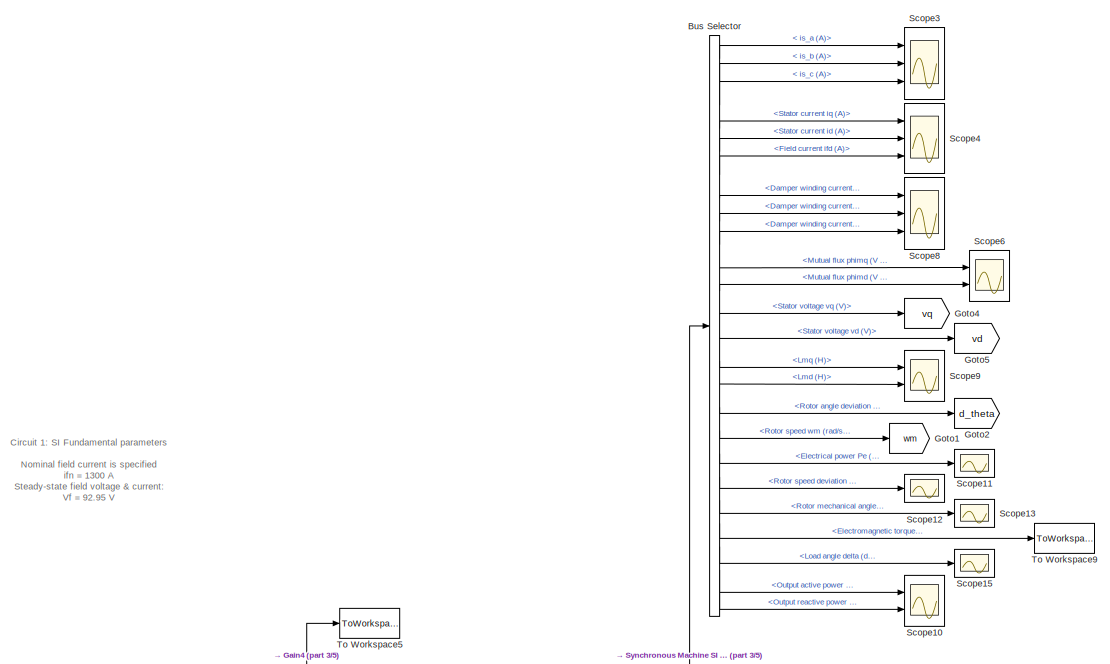
[diagram: root canvas - part 1/5, top left region]
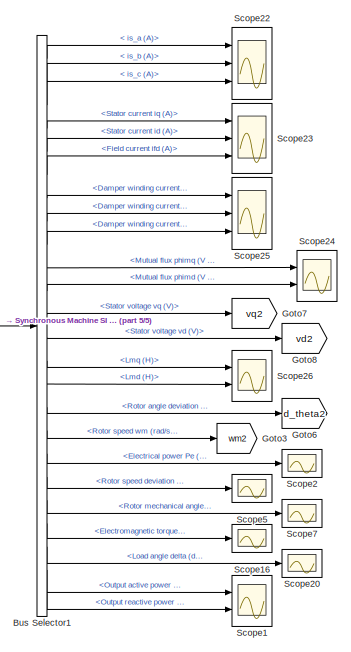
[diagram: root canvas - part 2/5, top right region]
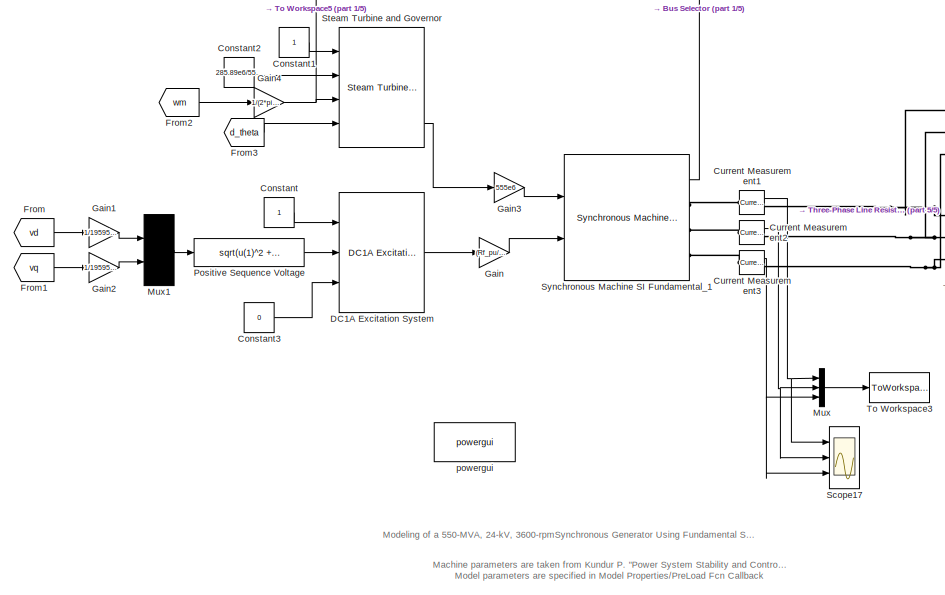
[diagram: root canvas - part 3/5, bottom left region]
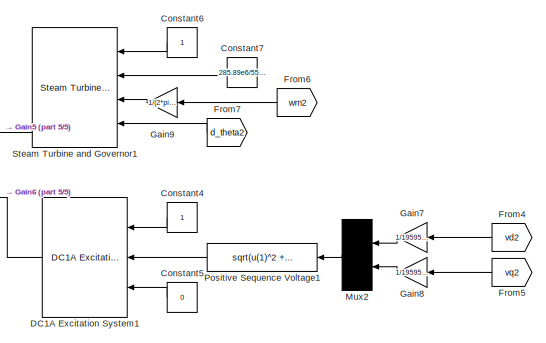
[diagram: root canvas - part 4/5, middle right region]
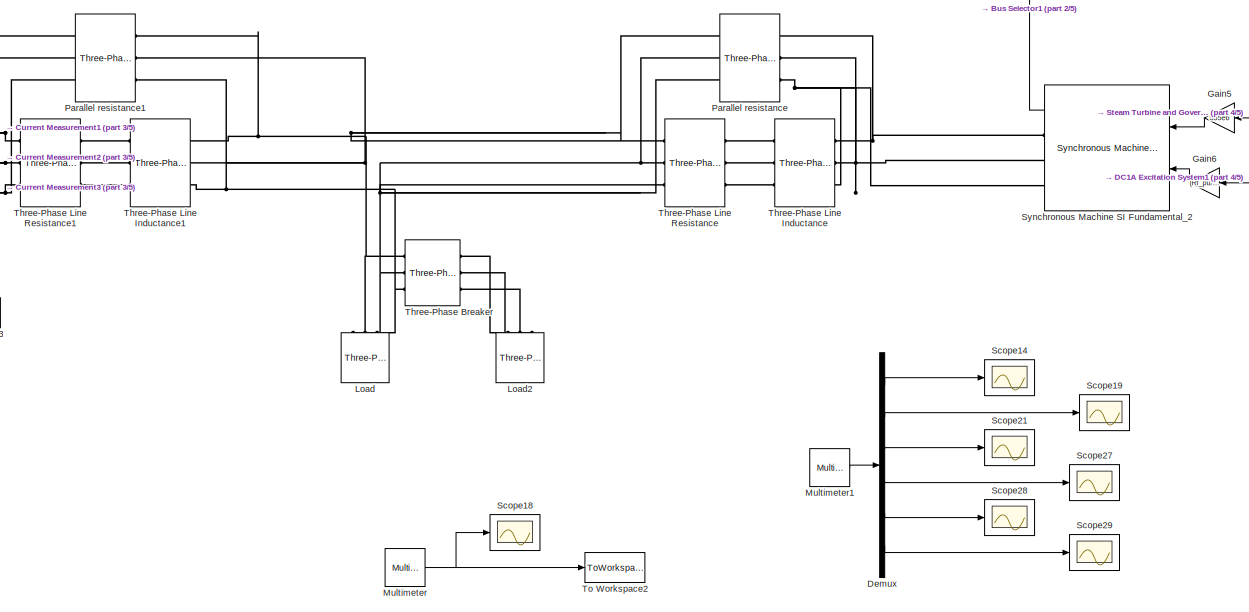
[diagram: root canvas - part 5/5, bottom center region]
MODEL slx_b8e702c381f7
KIND model
CONFIG AbsTol = auto
CONFIG EnableMultiTasking = on
CONFIG FixedStep = 0.00005
CONFIG MaxStep = 200e-6
CONFIG MinStep = auto
CONFIG PreLoadFcn = % Machine parameters from Kundur Examples 3.1, 3.2,  8.1 (pages 91,102, 345)\n% "Power System Stability and Control"  McGraw-Hill  book, 1994\n% --------------------------------------------------------------------\n% Nominal parameters\nPn=  555e6;   % three-pahse nominal power (VA)\nVn=  24e3;    % nominal LL volatge (Vrms)\nfn=  60;      % nominal frequency (Hz)\nifn= 1300;    % nominal field current (...<+1654ch>
CONFIG RelTol = 1e-4
CONFIG SampleTimeConstraint = Unconstrained
CONFIG Solver = FixedStepAuto
CONFIG SolverName = FixedStepAuto
CONFIG StartTime = 0.0
CONFIG StopTime = 0.3
BLOCK [BusSelector] Bus Selector
  OutputSignals = Stator current. is_a (A),Stator current. is_b (A),Stator current. is_c (A),dq0 components.Stator current  iq (A),dq0 components.Stator current  id (A),dq0 components.Field current  ifd (A),dq0 components.Damper winding current  ikq1 (A),dq0 components.Damper winding current  ikq2 (A),dq0 components.Damper winding current  ikd (A),dq0 components.Mutual flux  phimq (V s),dq0 components.Mutual flux  ...<+472ch>
  Ports = [1, 24]
BLOCK [BusSelector] Bus Selector1
  OutputSignals = Stator current. is_a (A),Stator current. is_b (A),Stator current. is_c (A),dq0 components.Stator current  iq (A),dq0 components.Stator current  id (A),dq0 components.Field current  ifd (A),dq0 components.Damper winding current  ikq1 (A),dq0 components.Damper winding current  ikq2 (A),dq0 components.Damper winding current  ikd (A),dq0 components.Mutual flux  phimq (V s),dq0 components.Mutual flux  ...<+472ch>
  Ports = [1, 24]
BLOCK [Constant] Constant
BLOCK [Constant] Constant1
BLOCK [Constant] Constant2
  Value = 285.89e6/555e6
BLOCK [Constant] Constant3
  Value = 0
BLOCK [Constant] Constant4
BLOCK [Constant] Constant5
  Value = 0
BLOCK [Constant] Constant6
BLOCK [Constant] Constant7
  Value = 285.89e6/555e6
BLOCK [Reference] Current Measurement1  REF=powerlib/Measurements/Current Measurement
  Ports = [0, 1, 0, 0, 0, 1, 1]
  SourceBlock = powerlib/Measurements/Current Measurement
  SourceType = Current Measurement
  UserDataPersistent = on
BLOCK [Reference] Current Measurement2  REF=powerlib/Measurements/Current Measurement
  Ports = [0, 1, 0, 0, 0, 1, 1]
  SourceBlock = powerlib/Measurements/Current Measurement
  SourceType = Current Measurement
  UserDataPersistent = on
BLOCK [Reference] Current Measurement3  REF=powerlib/Measurements/Current Measurement
  Ports = [0, 1, 0, 0, 0, 1, 1]
  SourceBlock = powerlib/Measurements/Current Measurement
  SourceType = Current Measurement
  UserDataPersistent = on
BLOCK [Reference] DC1A Excitation System  REF=sps_avr/DC1A
Excitation System
  Ports = [3, 1]
  SourceBlock = sps_avr/DC1A\nExcitation System
  SourceType = DC1A Excitation System
BLOCK [Reference] DC1A Excitation System1  REF=sps_avr/DC1A
Excitation System
  Ports = [3, 1]
  SourceBlock = sps_avr/DC1A\nExcitation System
  SourceType = DC1A Excitation System
BLOCK [Demux] Demux
  DisplayOption = bar
  Outputs = 6
  Ports = [1, 6]
BLOCK [From] From
  GotoTag = vd
BLOCK [From] From1
  GotoTag = vq
BLOCK [From] From2
  GotoTag = wm
BLOCK [From] From3
  GotoTag = d_theta
BLOCK [From] From4
  GotoTag = vd2
BLOCK [From] From5
  GotoTag = vq2
BLOCK [From] From6
  GotoTag = wm2
BLOCK [From] From7
  GotoTag = d_theta2
BLOCK [Gain] Gain
  Gain = (Rf_pu/Lmd_pu)*257198.07031934269
  OutDataTypeStr = Inherit: Inherit via internal rule
  ParamDataTypeStr = Inherit: Inherit via internal rule
  SaturateOnIntegerOverflow = off
BLOCK [Gain] Gain1
  Gain = 1/19595.917942265427
  OutDataTypeStr = Inherit: Inherit via internal rule
  ParamDataTypeStr = Inherit: Inherit via internal rule
  SaturateOnIntegerOverflow = off
BLOCK [Gain] Gain2
  Gain = 1/19595.917942265427
  OutDataTypeStr = Inherit: Inherit via internal rule
  ParamDataTypeStr = Inherit: Inherit via internal rule
  SaturateOnIntegerOverflow = off
BLOCK [Gain] Gain3
  Gain = 555e6
  OutDataTypeStr = Inherit: Inherit via internal rule
  ParamDataTypeStr = Inherit: Inherit via internal rule
  SaturateOnIntegerOverflow = off
BLOCK [Gain] Gain4
  Gain = 1/(2*pi*60)
  OutDataTypeStr = Inherit: Inherit via internal rule
  ParamDataTypeStr = Inherit: Inherit via internal rule
  SaturateOnIntegerOverflow = off
BLOCK [Gain] Gain5
  Gain = 555e6
  OutDataTypeStr = Inherit: Inherit via internal rule
  ParamDataTypeStr = Inherit: Inherit via internal rule
  SaturateOnIntegerOverflow = off
BLOCK [Gain] Gain6
  Gain = (Rf_pu/Lmd_pu)*257198.07031934269
  OutDataTypeStr = Inherit: Inherit via internal rule
  ParamDataTypeStr = Inherit: Inherit via internal rule
  SaturateOnIntegerOverflow = off
BLOCK [Gain] Gain7
  Gain = 1/19595.917942265427
  OutDataTypeStr = Inherit: Inherit via internal rule
  ParamDataTypeStr = Inherit: Inherit via internal rule
  SaturateOnIntegerOverflow = off
BLOCK [Gain] Gain8
  Gain = 1/19595.917942265427
  OutDataTypeStr = Inherit: Inherit via internal rule
  ParamDataTypeStr = Inherit: Inherit via internal rule
  SaturateOnIntegerOverflow = off
BLOCK [Gain] Gain9
  Gain = 1/(2*pi*60)
  OutDataTypeStr = Inherit: Inherit via internal rule
  ParamDataTypeStr = Inherit: Inherit via internal rule
  SaturateOnIntegerOverflow = off
BLOCK [Goto] Goto1
  GotoTag = wm
BLOCK [Goto] Goto2
  GotoTag = d_theta
BLOCK [Goto] Goto3
  GotoTag = wm2
BLOCK [Goto] Goto4
  GotoTag = vq
BLOCK [Goto] Goto5
  GotoTag = vd
BLOCK [Goto] Goto6
  GotoTag = d_theta2
BLOCK [Goto] Goto7
  GotoTag = vq2
BLOCK [Goto] Goto8
  GotoTag = vd2
BLOCK [Reference] Load  REF=powerlib/Elements/Three-Phase
Series RLC Load
  AttributesFormatString = \n
  Ports = [0, 0, 0, 0, 0, 3]
  SourceBlock = powerlib/Elements/Three-Phase\nSeries RLC Load
  SourceType = Three-Phase Series RLC Load
BLOCK [Reference] Load2  REF=powerlib/Elements/Three-Phase
Series RLC Load
  AttributesFormatString = \n
  Ports = [0, 0, 0, 0, 0, 3]
  SourceBlock = powerlib/Elements/Three-Phase\nSeries RLC Load
  SourceType = Three-Phase Series RLC Load
BLOCK [Reference] Multimeter  REF=powerlib/Measurements/Multimeter
  Ports = [0, 1]
  SourceBlock = powerlib/Measurements/Multimeter
  SourceType = MultimeterPSB
BLOCK [Reference] Multimeter1  REF=powerlib/Measurements/Multimeter
  Ports = [0, 1]
  SourceBlock = powerlib/Measurements/Multimeter
  SourceType = MultimeterPSB
BLOCK [Mux] Mux
  DisplayOption = bar
  Inputs = 3
  Ports = [3, 1]
BLOCK [Mux] Mux1
  Inputs = 2
  Ports = [2, 1]
BLOCK [Mux] Mux2
  Inputs = 2
  Ports = [2, 1]
BLOCK [Reference] Parallel resistance  REF=powerlib/Elements/Three-Phase
Series RLC Branch
  AttributesFormatString = \n
  Ports = [0, 0, 0, 0, 0, 3, 3]
  SourceBlock = powerlib/Elements/Three-Phase\nSeries RLC Branch
  SourceType = Three-Phase Series RLC Branch
BLOCK [Reference] Parallel resistance1  REF=powerlib/Elements/Three-Phase
Series RLC Branch
  AttributesFormatString = \n
  Ports = [0, 0, 0, 0, 0, 3, 3]
  SourceBlock = powerlib/Elements/Three-Phase\nSeries RLC Branch
  SourceType = Three-Phase Series RLC Branch
BLOCK [Fcn] Positive Sequence Voltage
  Expr = sqrt(u(1)^2 + u(2)^2)
BLOCK [Fcn] Positive Sequence Voltage1
  Expr = sqrt(u(1)^2 + u(2)^2)
BLOCK [Scope] Scope1
  NumInputPorts = 2
  Ports = [2]
  ScopeSpecificationString = C++SS(StrPVP('SaveName','ScopeData1'),StrPVP('LimitDataPoints','on'),StrPVP('DataFormat','Array'),StrPVP('Decimation','1'),StrPVP('BlockParamSampleInput','off'))
BLOCK [Scope] Scope10
  NumInputPorts = 2
  Ports = [2]
  ScopeSpecificationString = Simulink.scopes.TimeScopeBlockCfg('CurrentConfiguration', extmgr.ConfigurationSet(extmgr.Configuration('Core','General UI',true),extmgr.Configuration('Core','Source UI',true),extmgr.Configuration('Sources','WiredSimulink',true,'DataLoggingVariableName','ScopeData8'),extmgr.Configuration('Visuals','Time Domain',true,'SerializedDisplays',{struct('MinYLimReal','-938864446.74953','MaxYLimReal','845534...<+2126ch>
BLOCK [Scope] Scope11
  NumInputPorts = 1
  Ports = [1]
  ScopeSpecificationString = Simulink.scopes.TimeScopeBlockCfg('CurrentConfiguration', extmgr.ConfigurationSet(extmgr.Configuration('Core','General UI',true),extmgr.Configuration('Core','Source UI',true),extmgr.Configuration('Sources','WiredSimulink',true,'DataLoggingVariableName','ScopeData9'),extmgr.Configuration('Visuals','Time Domain',true,'SerializedDisplays',{struct('MinYLimReal','554795.30383','MaxYLimReal','555665.063...<+2070ch>
BLOCK [Scope] Scope12
  NumInputPorts = 1
  Ports = [1]
  ScopeSpecificationString = Simulink.scopes.TimeScopeBlockCfg('CurrentConfiguration', extmgr.ConfigurationSet(extmgr.Configuration('Core','General UI',true),extmgr.Configuration('Core','Source UI',true),extmgr.Configuration('Sources','WiredSimulink',true,'DataLoggingVariableName','ScopeData10'),extmgr.Configuration('Visuals','Time Domain',true,'SerializedDisplays',{struct('MinYLimReal','-0.000000002','MaxYLimReal','0.0000000...<+2074ch>
BLOCK [Scope] Scope13
  NumInputPorts = 1
  Ports = [1]
  ScopeSpecificationString = Simulink.scopes.TimeScopeBlockCfg('CurrentConfiguration', extmgr.ConfigurationSet(extmgr.Configuration('Core','General UI',true),extmgr.Configuration('Core','Source UI',true),extmgr.Configuration('Sources','WiredSimulink',true,'DataLoggingVariableName','ScopeData11'),extmgr.Configuration('Visuals','Time Domain',true,'SerializedDisplays',{struct('MinYLimReal','-113.91898','MaxYLimReal','-47.70201',...<+2113ch>
BLOCK [Scope] Scope14
  NumInputPorts = 1
  Ports = [1]
  ScopeSpecificationString = Simulink.scopes.TimeScopeBlockCfg('CurrentConfiguration', extmgr.ConfigurationSet(extmgr.Configuration('Core','General UI',true),extmgr.Configuration('Core','Source UI',true),extmgr.Configuration('Sources','WiredSimulink',true,'DataLoggingVariableName','ScopeData1'),extmgr.Configuration('Visuals','Time Domain',true,'SerializedDisplays',{struct('MinYLimReal','-4324.46237','MaxYLimReal','4316.55226'...<+1774ch>
BLOCK [Scope] Scope15
  NumInputPorts = 1
  Ports = [1]
  ScopeSpecificationString = Simulink.scopes.TimeScopeBlockCfg('CurrentConfiguration', extmgr.ConfigurationSet(extmgr.Configuration('Core','General UI',true),extmgr.Configuration('Core','Source UI',true),extmgr.Configuration('Sources','WiredSimulink',true,'DataLoggingVariableName','ScopeData13'),extmgr.Configuration('Visuals','Time Domain',true,'SerializedDisplays',{struct('MinYLimReal','-190.61532','MaxYLimReal','214.69266',...<+2060ch>
BLOCK [Scope] Scope16
  NumInputPorts = 1
  Ports = [1]
  ScopeSpecificationString = C++SS(StrPVP('SaveName','ScopeData2'),StrPVP('LimitDataPoints','on'),StrPVP('DataFormat','Array'),StrPVP('Decimation','1'),StrPVP('BlockParamSampleInput','off'))
BLOCK [Scope] Scope17
  NumInputPorts = 3
  Ports = [3]
  ScopeSpecificationString = Simulink.scopes.TimeScopeBlockCfg('CurrentConfiguration', extmgr.ConfigurationSet(extmgr.Configuration('Core','General UI',true),extmgr.Configuration('Core','Source UI',true),extmgr.Configuration('Sources','WiredSimulink',true,'DataLoggingSaveFormat','StructureWithTime','DataLoggingDecimation','1','DataLoggingDecimateData',true,'DataLoggingVariableName','ScopeData2'),extmgr.Configuration('Visuals'...<+2002ch>
BLOCK [Scope] Scope18
  NumInputPorts = 1
  Ports = [1]
  ScopeSpecificationString = Simulink.scopes.TimeScopeBlockCfg('CurrentConfiguration', extmgr.ConfigurationSet(extmgr.Configuration('Core','General UI',true),extmgr.Configuration('Core','Source UI',true),extmgr.Configuration('Sources','WiredSimulink',true,'DataLoggingVariableName','ScopeData1'),extmgr.Configuration('Visuals','Time Domain',true,'SerializedDisplays',{struct('MinYLimReal','-24496.13978','MaxYLimReal','24496.1398...<+1853ch>
BLOCK [Scope] Scope19
  NumInputPorts = 1
  Ports = [1]
  ScopeSpecificationString = Simulink.scopes.TimeScopeBlockCfg('CurrentConfiguration', extmgr.ConfigurationSet(extmgr.Configuration('Core','General UI',true),extmgr.Configuration('Core','Source UI',true),extmgr.Configuration('Sources','WiredSimulink',true,'DataLoggingVariableName','ScopeData2'),extmgr.Configuration('Visuals','Time Domain',true,'SerializedDisplays',{struct('MinYLimReal','-4316.01246','MaxYLimReal','4314.87166'...<+1748ch>
BLOCK [Scope] Scope2
  NumInputPorts = 1
  Ports = [1]
  ScopeSpecificationString = C++SS(StrPVP('SaveName','ScopeData3'),StrPVP('LimitDataPoints','on'),StrPVP('DataFormat','Array'),StrPVP('Decimation','1'),StrPVP('BlockParamSampleInput','off'))
BLOCK [Scope] Scope20
  NumInputPorts = 1
  Ports = [1]
  ScopeSpecificationString = C++SS(StrPVP('SaveName','ScopeData4'),StrPVP('LimitDataPoints','on'),StrPVP('DataFormat','Array'),StrPVP('Decimation','1'),StrPVP('BlockParamSampleInput','off'))
BLOCK [Scope] Scope21
  NumInputPorts = 1
  Ports = [1]
  ScopeSpecificationString = Simulink.scopes.TimeScopeBlockCfg('CurrentConfiguration', extmgr.ConfigurationSet(extmgr.Configuration('Core','General UI',true),extmgr.Configuration('Core','Source UI',true),extmgr.Configuration('Sources','WiredSimulink',true,'DataLoggingVariableName','ScopeData3'),extmgr.Configuration('Visuals','Time Domain',true,'SerializedDisplays',{struct('MinYLimReal','-4315.43617','MaxYLimReal','4316.66942'...<+1749ch>
BLOCK [Scope] Scope22
  NumInputPorts = 3
  Ports = [3]
  ScopeSpecificationString = C++SS(StrPVP('SaveName','ScopeData5'),StrPVP('LimitDataPoints','on'),StrPVP('DataFormat','Array'),StrPVP('Decimation','1'),StrPVP('BlockParamSampleInput','off'))
BLOCK [Scope] Scope23
  NumInputPorts = 3
  Ports = [3]
  ScopeSpecificationString = C++SS(StrPVP('SaveName','ScopeData6'),StrPVP('LimitDataPoints','on'),StrPVP('DataFormat','Array'),StrPVP('Decimation','1'),StrPVP('BlockParamSampleInput','off'))
BLOCK [Scope] Scope24
  NumInputPorts = 2
  Ports = [2]
  ScopeSpecificationString = C++SS(StrPVP('SaveName','ScopeData7'),StrPVP('LimitDataPoints','on'),StrPVP('DataFormat','Array'),StrPVP('Decimation','1'),StrPVP('BlockParamSampleInput','off'))
BLOCK [Scope] Scope25
  NumInputPorts = 3
  Ports = [3]
  ScopeSpecificationString = C++SS(StrPVP('SaveName','ScopeData8'),StrPVP('LimitDataPoints','on'),StrPVP('DataFormat','Array'),StrPVP('Decimation','1'),StrPVP('BlockParamSampleInput','off'))
BLOCK [Scope] Scope26
  NumInputPorts = 2
  Ports = [2]
  ScopeSpecificationString = C++SS(StrPVP('SaveName','ScopeData9'),StrPVP('LimitDataPoints','on'),StrPVP('DataFormat','Array'),StrPVP('Decimation','1'),StrPVP('BlockParamSampleInput','off'))
BLOCK [Scope] Scope27
  NumInputPorts = 1
  Ports = [1]
  ScopeSpecificationString = Simulink.scopes.TimeScopeBlockCfg('CurrentConfiguration', extmgr.ConfigurationSet(extmgr.Configuration('Core','General UI',true),extmgr.Configuration('Core','Source UI',true),extmgr.Configuration('Sources','WiredSimulink',true,'DataLoggingVariableName','ScopeData4'),extmgr.Configuration('Visuals','Time Domain',true,'SerializedDisplays',{struct('MinYLimReal','-12332.328','MaxYLimReal','12329.39103'...<+1722ch>
BLOCK [Scope] Scope28
  NumInputPorts = 1
  Ports = [1]
  ScopeSpecificationString = Simulink.scopes.TimeScopeBlockCfg('CurrentConfiguration', extmgr.ConfigurationSet(extmgr.Configuration('Core','General UI',true),extmgr.Configuration('Core','Source UI',true),extmgr.Configuration('Sources','WiredSimulink',true,'DataLoggingVariableName','ScopeData5'),extmgr.Configuration('Visuals','Time Domain',true,'SerializedDisplays',{struct('MinYLimReal','-12331.02101','MaxYLimReal','12334.9618...<+1730ch>
BLOCK [Scope] Scope29
  NumInputPorts = 1
  Ports = [1]
  ScopeSpecificationString = Simulink.scopes.TimeScopeBlockCfg('CurrentConfiguration', extmgr.ConfigurationSet(extmgr.Configuration('Core','General UI',true),extmgr.Configuration('Core','Source UI',true),extmgr.Configuration('Sources','WiredSimulink',true,'DataLoggingVariableName','ScopeData6'),extmgr.Configuration('Visuals','Time Domain',true,'SerializedDisplays',{struct('MinYLimReal','-12328.35611','MaxYLimReal','12331.2889...<+1730ch>
BLOCK [Scope] Scope3
  NumInputPorts = 3
  Ports = [3]
  ScopeSpecificationString = Simulink.scopes.TimeScopeBlockCfg('CurrentConfiguration', extmgr.ConfigurationSet(extmgr.Configuration('Core','General UI',true),extmgr.Configuration('Core','Source UI',true),extmgr.Configuration('Sources','WiredSimulink',true,'DataLoggingVariableName','ScopeData1'),extmgr.Configuration('Visuals','Time Domain',true,'SerializedDisplays',{struct('MinYLimReal','16.30961','MaxYLimReal','16.37906','YLa...<+1475ch>
BLOCK [Scope] Scope4
  NumInputPorts = 3
  Ports = [3]
  ScopeSpecificationString = Simulink.scopes.TimeScopeBlockCfg('CurrentConfiguration', extmgr.ConfigurationSet(extmgr.Configuration('Core','General UI',true),extmgr.Configuration('Core','Source UI',true),extmgr.Configuration('Sources','WiredSimulink',true,'DataLoggingVariableName','ScopeData2'),extmgr.Configuration('Visuals','Time Domain',true,'SerializedDisplays',{struct('MinYLimReal','-104503.54243','MaxYLimReal','107336.88...<+2852ch>
BLOCK [Scope] Scope5
  NumInputPorts = 1
  Ports = [1]
  ScopeSpecificationString = C++SS(StrPVP('SaveName','ScopeData10'),StrPVP('LimitDataPoints','on'),StrPVP('DataFormat','Array'),StrPVP('Decimation','1'),StrPVP('BlockParamSampleInput','off'))
BLOCK [Scope] Scope6
  NumInputPorts = 2
  Ports = [2]
  ScopeSpecificationString = Simulink.scopes.TimeScopeBlockCfg('CurrentConfiguration', extmgr.ConfigurationSet(extmgr.Configuration('Core','General UI',true),extmgr.Configuration('Core','Source UI',true),extmgr.Configuration('Sources','WiredSimulink',true,'DataLoggingVariableName','ScopeData4'),extmgr.Configuration('Visuals','Time Domain',true,'SerializedDisplays',{struct('MinYLimReal','-32.79254','MaxYLimReal','25.98415','YL...<+2085ch>
BLOCK [Scope] Scope7
  NumInputPorts = 1
  Ports = [1]
  ScopeSpecificationString = C++SS(StrPVP('SaveName','ScopeData11'),StrPVP('LimitDataPoints','on'),StrPVP('DataFormat','Array'),StrPVP('Decimation','1'),StrPVP('BlockParamSampleInput','off'))
BLOCK [Scope] Scope8
  NumInputPorts = 3
  Ports = [3]
  ScopeSpecificationString = Simulink.scopes.TimeScopeBlockCfg('CurrentConfiguration', extmgr.ConfigurationSet(extmgr.Configuration('Core','General UI',true),extmgr.Configuration('Core','Source UI',true),extmgr.Configuration('Sources','WiredSimulink',true,'DataLoggingVariableName','ScopeData6'),extmgr.Configuration('Visuals','Time Domain',true,'SerializedDisplays',{struct('MinYLimReal','-13184.59574','MaxYLimReal','16286.8917...<+2861ch>
BLOCK [Scope] Scope9
  NumInputPorts = 2
  Ports = [2]
  ScopeSpecificationString = Simulink.scopes.TimeScopeBlockCfg('CurrentConfiguration', extmgr.ConfigurationSet(extmgr.Configuration('Core','General UI',true),extmgr.Configuration('Core','Source UI',true),extmgr.Configuration('Sources','WiredSimulink',true,'DataLoggingVariableName','ScopeData7'),extmgr.Configuration('Visuals','Time Domain',true,'SerializedDisplays',{struct('MinYLimReal','0.00343','MaxYLimReal','0.00543','YLabe...<+2043ch>
BLOCK [Reference] Steam Turbine and Governor  REF=powerlib/Machines/Steam Turbine
and Governor
  Ports = [4, 4]
  SourceBlock = powerlib/Machines/Steam Turbine\nand Governor
  SourceType = Steam Turbine and Governor
BLOCK [Reference] Steam Turbine and Governor1  REF=powerlib/Machines/Steam Turbine
and Governor
  Ports = [4, 4]
  SourceBlock = powerlib/Machines/Steam Turbine\nand Governor
  SourceType = Steam Turbine and Governor
BLOCK [Reference] Synchronous Machine SI Fundamental_1  REF=powerlib/Machines/Synchronous Machine
SI Fundamental
  Ports = [2, 1, 0, 0, 0, 0, 3]
  SourceBlock = powerlib/Machines/Synchronous Machine\nSI Fundamental
  SourceType = Synchronous Machine
BLOCK [Reference] Synchronous Machine SI Fundamental_2  REF=powerlib/Machines/Synchronous Machine
SI Fundamental
  Ports = [2, 1, 0, 0, 0, 0, 3]
  SourceBlock = powerlib/Machines/Synchronous Machine\nSI Fundamental
  SourceType = Synchronous Machine
BLOCK [Reference] Three-Phase Breaker  REF=powerlib/Elements/Three-Phase Breaker
  Ports = [0, 0, 0, 0, 0, 3, 3]
  SourceBlock = powerlib/Elements/Three-Phase Breaker
  SourceType = Three-Phase Breaker
BLOCK [Reference] Three-Phase Line Inductance  REF=powerlib/Elements/Three-Phase
Series RLC Branch
  AttributesFormatString = \n
  Ports = [0, 0, 0, 0, 0, 3, 3]
  SourceBlock = powerlib/Elements/Three-Phase\nSeries RLC Branch
  SourceType = Three-Phase Series RLC Branch
BLOCK [Reference] Three-Phase Line Inductance1  REF=powerlib/Elements/Three-Phase
Series RLC Branch
  AttributesFormatString = \n
  Ports = [0, 0, 0, 0, 0, 3, 3]
  SourceBlock = powerlib/Elements/Three-Phase\nSeries RLC Branch
  SourceType = Three-Phase Series RLC Branch
BLOCK [Reference] Three-Phase Line Resistance  REF=powerlib/Elements/Three-Phase
Series RLC Branch
  AttributesFormatString = \n
  Ports = [0, 0, 0, 0, 0, 3, 3]
  SourceBlock = powerlib/Elements/Three-Phase\nSeries RLC Branch
  SourceType = Three-Phase Series RLC Branch
BLOCK [Reference] Three-Phase Line Resistance1  REF=powerlib/Elements/Three-Phase
Series RLC Branch
  AttributesFormatString = \n
  Ports = [0, 0, 0, 0, 0, 3, 3]
  SourceBlock = powerlib/Elements/Three-Phase\nSeries RLC Branch
  SourceType = Three-Phase Series RLC Branch
BLOCK [ToWorkspace] To Workspace2
  FixptAsFi = on
  MaxDataPoints = inf
  Ports = [1]
  SampleTime = -1
  Save2DSignal = 3-D array (concatenate along third dimension)
  VariableName = voltages
BLOCK [ToWorkspace] To Workspace3
  FixptAsFi = on
  MaxDataPoints = inf
  Ports = [1]
  SampleTime = -1
  Save2DSignal = 3-D array (concatenate along third dimension)
  VariableName = currents
BLOCK [ToWorkspace] To Workspace5
  MaxDataPoints = inf
  Ports = [1]
  SampleTime = -1
  Save2DSignal = 3-D array (concatenate along third dimension)
  VariableName = omega_pu
BLOCK [ToWorkspace] To Workspace9
  MaxDataPoints = inf
  Ports = [1]
  SampleTime = -1
  Save2DSignal = 3-D array (concatenate along third dimension)
  VariableName = Te
BLOCK [Reference] powergui  REF=powerlib/powergui
  Ports = []
  Priority = 1
  SourceBlock = powerlib/powergui
  SourceType = PSB option menu block
ANNOTATION (root): Circuit 1: SI Fundamental parameters Nominal field current is specified ifn = 1300 A Steady-state field voltage & current: Vf = 92.95 V If = 1300 A Transformation ratio : Ns/Nf = 0.07619
ANNOTATION (root): Machine parameters are taken from Kundur P. "Power System Stability and Control" McGraw-Hill book, 1994 Examples 3.1, 3.2 & 8.1 Model parameters are specified in Model Properties/PreLoad Fcn Callback
ANNOTATION (root): Modeling of a 550-MVA, 24-kV, 3600-rpmSynchronous Generator Using Fundamental SI & PU Parameters
LINE Bus Selector1:1 -> Scope22:1
LINE Bus Selector1:10 -> Scope24:1
LINE Bus Selector1:11 -> Scope24:2
LINE Bus Selector1:12 -> Goto7:1
LINE Bus Selector1:13 -> Goto8:1
LINE Bus Selector1:14 -> Scope26:1
LINE Bus Selector1:15 -> Scope26:2
LINE Bus Selector1:16 -> Goto6:1
LINE Bus Selector1:17 -> Goto3:1
LINE Bus Selector1:18 -> Scope2:1
LINE Bus Selector1:19 -> Scope5:1
LINE Bus Selector1:2 -> Scope22:2
LINE Bus Selector1:20 -> Scope7:1
LINE Bus Selector1:21 -> Scope16:1
LINE Bus Selector1:22 -> Scope20:1
LINE Bus Selector1:23 -> Scope1:1
LINE Bus Selector1:24 -> Scope1:2
LINE Bus Selector1:3 -> Scope22:3
LINE Bus Selector1:4 -> Scope23:1
LINE Bus Selector1:5 -> Scope23:2
LINE Bus Selector1:6 -> Scope23:3
LINE Bus Selector1:7 -> Scope25:1
LINE Bus Selector1:8 -> Scope25:2
LINE Bus Selector1:9 -> Scope25:3
LINE Bus Selector:1 -> Scope3:1
LINE Bus Selector:10 -> Scope6:1
LINE Bus Selector:11 -> Scope6:2
LINE Bus Selector:12 -> Goto4:1
LINE Bus Selector:13 -> Goto5:1
LINE Bus Selector:14 -> Scope9:1
LINE Bus Selector:15 -> Scope9:2
LINE Bus Selector:16 -> Goto2:1
LINE Bus Selector:17 -> Goto1:1
LINE Bus Selector:18 -> Scope11:1
LINE Bus Selector:19 -> Scope12:1
LINE Bus Selector:2 -> Scope3:2
LINE Bus Selector:20 -> Scope13:1
LINE Bus Selector:21 -> To Workspace9:1
LINE Bus Selector:22 -> Scope15:1
LINE Bus Selector:23 -> Scope10:1
LINE Bus Selector:24 -> Scope10:2
LINE Bus Selector:3 -> Scope3:3
LINE Bus Selector:4 -> Scope4:1
LINE Bus Selector:5 -> Scope4:2
LINE Bus Selector:6 -> Scope4:3
LINE Bus Selector:7 -> Scope8:1
LINE Bus Selector:8 -> Scope8:2
LINE Bus Selector:9 -> Scope8:3
LINE Constant1:1 -> Steam Turbine and Governor:1
LINE Constant2:1 -> Steam Turbine and Governor:2
LINE Constant3:1 -> DC1A Excitation System:3
LINE Constant4:1 -> DC1A Excitation System1:1
LINE Constant5:1 -> DC1A Excitation System1:3
LINE Constant6:1 -> Steam Turbine and Governor1:1
LINE Constant7:1 -> Steam Turbine and Governor1:2
LINE Constant:1 -> DC1A Excitation System:1
NET Current Measurement1:1 -> Mux:1, Scope17:1
NET Current Measurement2:1 -> Mux:2, Scope17:2
NET Current Measurement3:1 -> Mux:3, Scope17:3
LINE DC1A Excitation System1:1 -> Gain6:1
LINE DC1A Excitation System:1 -> Gain:1
LINE Demux:1 -> Scope14:1
LINE Demux:2 -> Scope19:1
LINE Demux:3 -> Scope21:1
LINE Demux:4 -> Scope27:1
LINE Demux:5 -> Scope28:1
LINE Demux:6 -> Scope29:1
LINE From1:1 -> Gain2:1
LINE From2:1 -> Gain4:1
LINE From3:1 -> Steam Turbine and Governor:4
LINE From4:1 -> Gain7:1
LINE From5:1 -> Gain8:1
LINE From6:1 -> Gain9:1
LINE From7:1 -> Steam Turbine and Governor1:4
LINE From:1 -> Gain1:1
LINE Gain1:1 -> Mux1:1
LINE Gain2:1 -> Mux1:2
LINE Gain3:1 -> Synchronous Machine SI Fundamental_1:1
NET Gain4:1 -> Steam Turbine and Governor:3, To Workspace5:1
LINE Gain5:1 -> Synchronous Machine SI Fundamental_2:1
LINE Gain6:1 -> Synchronous Machine SI Fundamental_2:2
LINE Gain7:1 -> Mux2:1
LINE Gain8:1 -> Mux2:2
LINE Gain9:1 -> Steam Turbine and Governor1:3
LINE Gain:1 -> Synchronous Machine SI Fundamental_1:2
LINE Multimeter1:1 -> Demux:1
NET Multimeter:1 -> Scope18:1, To Workspace2:1
LINE Mux1:1 -> Positive Sequence Voltage:1
LINE Mux2:1 -> Positive Sequence Voltage1:1
LINE Mux:1 -> To Workspace3:1
LINE Positive Sequence Voltage1:1 -> DC1A Excitation System1:2
LINE Positive Sequence Voltage:1 -> DC1A Excitation System:2
LINE Steam Turbine and Governor1:4 -> Gain5:1
LINE Steam Turbine and Governor:4 -> Gain3:1
LINE Synchronous Machine SI Fundamental_1:1 -> Bus Selector:1
LINE Synchronous Machine SI Fundamental_2:1 -> Bus Selector1:1
PLINE Current Measurement1:LConn1 -- Synchronous Machine SI Fundamental_1:RConn1
PNET net1: Current Measurement1:RConn1 -- Parallel resistance1:LConn1 -- Three-Phase Line Resistance1:LConn1
PLINE Current Measurement2:LConn1 -- Synchronous Machine SI Fundamental_1:RConn2
PNET net2: Current Measurement2:RConn1 -- Parallel resistance1:LConn2 -- Three-Phase Line Resistance1:LConn2
PLINE Current Measurement3:LConn1 -- Synchronous Machine SI Fundamental_1:RConn3
PNET net3: Current Measurement3:RConn1 -- Parallel resistance1:LConn3 -- Three-Phase Line Resistance1:LConn3
PLINE Load2:LConn1 -- Three-Phase Breaker:RConn1
PLINE Load2:LConn2 -- Three-Phase Breaker:RConn2
PLINE Load2:LConn3 -- Three-Phase Breaker:RConn3
PNET net4: Load:LConn1 -- Parallel resistance1:RConn1 -- Parallel resistance:LConn1 -- Three-Phase Breaker:LConn1 -- Three-Phase Line Inductance1:RConn1 -- Three-Phase Line Resistance:LConn1
PNET net5: Load:LConn2 -- Parallel resistance1:RConn2 -- Parallel resistance:LConn2 -- Three-Phase Breaker:LConn2 -- Three-Phase Line Inductance1:RConn2 -- Three-Phase Line Resistance:LConn2
PNET net6: Load:LConn3 -- Parallel resistance1:RConn3 -- Parallel resistance:LConn3 -- Three-Phase Breaker:LConn3 -- Three-Phase Line Inductance1:RConn3 -- Three-Phase Line Resistance:LConn3
PNET net7: Parallel resistance:RConn1 -- Synchronous Machine SI Fundamental_2:RConn1 -- Three-Phase Line Inductance:RConn1
PNET net8: Parallel resistance:RConn2 -- Synchronous Machine SI Fundamental_2:RConn2 -- Three-Phase Line Inductance:RConn2
PNET net9: Parallel resistance:RConn3 -- Synchronous Machine SI Fundamental_2:RConn3 -- Three-Phase Line Inductance:RConn3
PLINE Three-Phase Line Inductance1:LConn1 -- Three-Phase Line Resistance1:RConn1
PLINE Three-Phase Line Inductance1:LConn2 -- Three-Phase Line Resistance1:RConn2
PLINE Three-Phase Line Inductance1:LConn3 -- Three-Phase Line Resistance1:RConn3
PLINE Three-Phase Line Inductance:LConn1 -- Three-Phase Line Resistance:RConn1
PLINE Three-Phase Line Inductance:LConn2 -- Three-Phase Line Resistance:RConn2
PLINE Three-Phase Line Inductance:LConn3 -- Three-Phase Line Resistance:RConn3
note: NET lines group one-source signal fan-out (src -> all destinations, sorted); 1:1 wires keep LINE; PNET lines group multi-terminal physical nets as a canonical sorted terminal list (undirected conserving connections); 2-terminal nets keep the pairwise PLINE form
